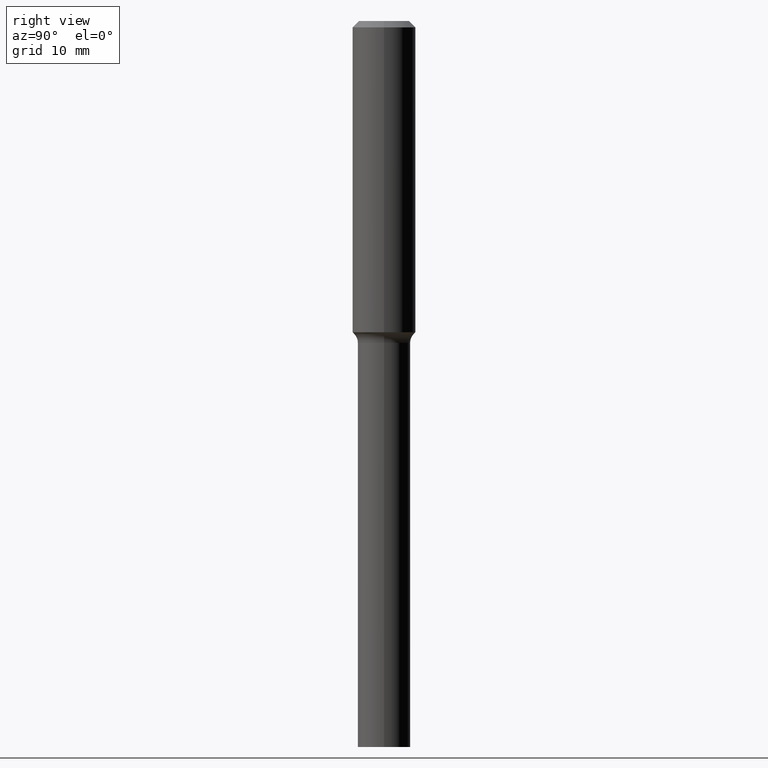
[diagram: clean part render]
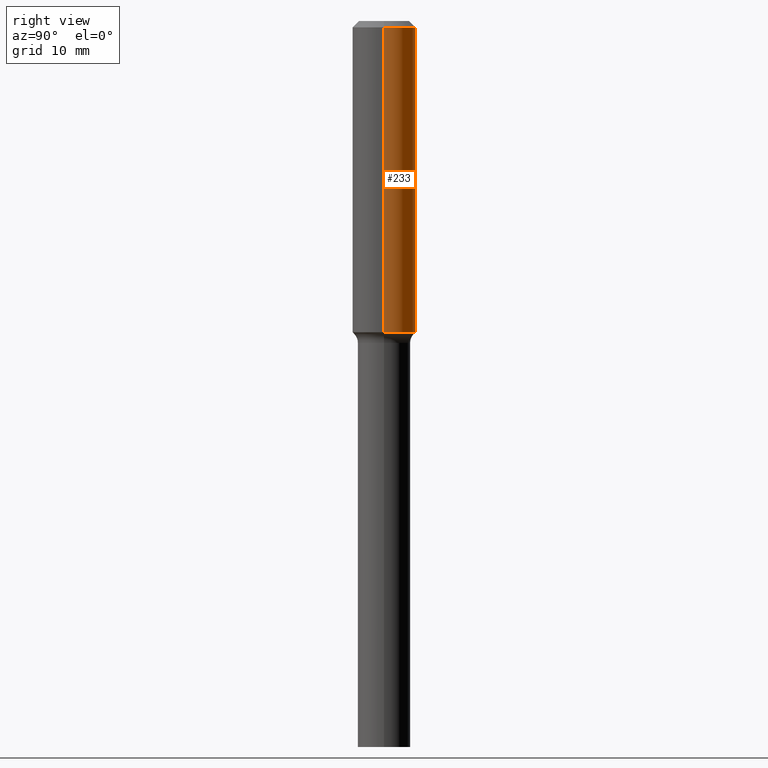
[diagram: same view with one face highlighted and labeled with its STEP entity id]
A machine part, right view. The second image highlights one B-rep face of the part: STEP entity #233.
In plain terms, the highlighted cylindrical surface (edge-blend (fillet) strip) has radius 5 mm, axis along (-0, 0, 1).
Its self-contained STEP definition (entity closure, byte-faithful):
#8 = EDGE_CURVE ( 'NONE', #479, #458, #22, .T. ) ;
#13 = CARTESIAN_POINT ( 'NONE',  ( -0.1968500000000002470, -5.377959779402321474E-15, -1.940913468261994179 ) ) ;
#22 = LINE ( 'NONE', #101, #97 ) ;
#31 = FACE_OUTER_BOUND ( 'NONE', #452, .T. ) ;
#69 = CIRCLE ( 'NONE', #386, 0.1968500000000000250 ) ;
#97 = VECTOR ( 'NONE', #132, 39.37007874015748143 ) ;
#100 = DIRECTION ( 'NONE',  ( -2.445468806185136597E-29, 3.491481338843145583E-15, 1.000000000000000000 ) ) ;
#101 = CARTESIAN_POINT ( 'NONE',  ( 0.1968500000000001082, -1.374596203102542397E-15, 9.598753983154305062E-30 ) ) ;
#132 = DIRECTION ( 'NONE',  ( -2.445468806185136877E-29, 3.491481338843145188E-15, 1.000000000000000000 ) ) ;
#136 = DIRECTION ( 'NONE',  ( 1.000000000000000000, -6.982962677686265922E-15, 0.000000000000000000 ) ) ;
#145 = EDGE_CURVE ( 'NONE', #344, #274, #321, .T. ) ;
#151 = CYLINDRICAL_SURFACE ( 'NONE', #325, 0.1968500000000001082 ) ;
#184 = DIRECTION ( 'NONE',  ( 1.000000000000000000, -6.982962677686269866E-15, 0.000000000000000000 ) ) ;
#193 = DIRECTION ( 'NONE',  ( -2.445468806185136597E-29, 3.491481338843145583E-15, 1.000000000000000000 ) ) ;
#233 = ADVANCED_FACE ( 'NONE', ( #31 ), #151, .T. ) ;
#236 = EDGE_CURVE ( 'NONE', #458, #274, #69, .T. ) ;
#249 = ORIENTED_EDGE ( 'NONE', *, *, #8, .F. ) ;
#255 = EDGE_CURVE ( 'NONE', #479, #344, #362, .T. ) ;
#264 = CARTESIAN_POINT ( 'NONE',  ( 4.746443342139311740E-29, -6.776663154746080840E-15, -1.940913468261994179 ) ) ;
#274 = VERTEX_POINT ( 'NONE', #490 ) ;
#321 = LINE ( 'NONE', #391, #331 ) ;
#325 = AXIS2_PLACEMENT_3D ( 'NONE', #390, #193, #354 ) ;
#327 = ORIENTED_EDGE ( 'NONE', *, *, #145, .T. ) ;
#331 = VECTOR ( 'NONE', #357, 39.37007874015748143 ) ;
#344 = VERTEX_POINT ( 'NONE', #13 ) ;
#348 = ORIENTED_EDGE ( 'NONE', *, *, #255, .T. ) ;
#349 = CARTESIAN_POINT ( 'NONE',  ( 0.1968500000000002470, -8.151259357848624026E-15, -1.940913468261994179 ) ) ;
#354 = DIRECTION ( 'NONE',  ( 1.000000000000000000, -6.982962677686266711E-15, 4.876176775795935793E-29 ) ) ;
#357 = DIRECTION ( 'NONE',  ( -2.445468806185136877E-29, 3.491481338843145188E-15, 1.000000000000000000 ) ) ;
#362 = CIRCLE ( 'NONE', #483, 0.1968500000000002470 ) ;
#386 = AXIS2_PLACEMENT_3D ( 'NONE', #509, #100, #136 ) ;
#390 = CARTESIAN_POINT ( 'NONE',  ( 0.000000000000000000, 0.000000000000000000, 0.000000000000000000 ) ) ;
#391 = CARTESIAN_POINT ( 'NONE',  ( -0.1968500000000001082, 1.398703375343757985E-15, -9.682923725166787881E-30 ) ) ;
#452 = EDGE_LOOP ( 'NONE', ( #348, #327, #495, #249 ) ) ;
#458 = VERTEX_POINT ( 'NONE', #508 ) ;
#479 = VERTEX_POINT ( 'NONE', #349 ) ;
#483 = AXIS2_PLACEMENT_3D ( 'NONE', #264, #500, #184 ) ;
#490 = CARTESIAN_POINT ( 'NONE',  ( -0.1968500000000000250, -2.058358012184409634E-15, -0.03937000000000027977 ) ) ;
#495 = ORIENTED_EDGE ( 'NONE', *, *, #236, .F. ) ;
#500 = DIRECTION ( 'NONE',  ( -2.445468806185136597E-29, 3.491481338843145583E-15, 1.000000000000000000 ) ) ;
#508 = CARTESIAN_POINT ( 'NONE',  ( 0.1968500000000000250, -1.512055823412797189E-15, -0.03937000000000027977 ) ) ;
#509 = CARTESIAN_POINT ( 'NONE',  ( 9.627810689950950651E-31, -1.374596203102556054E-16, -0.03937000000000027977 ) ) ;